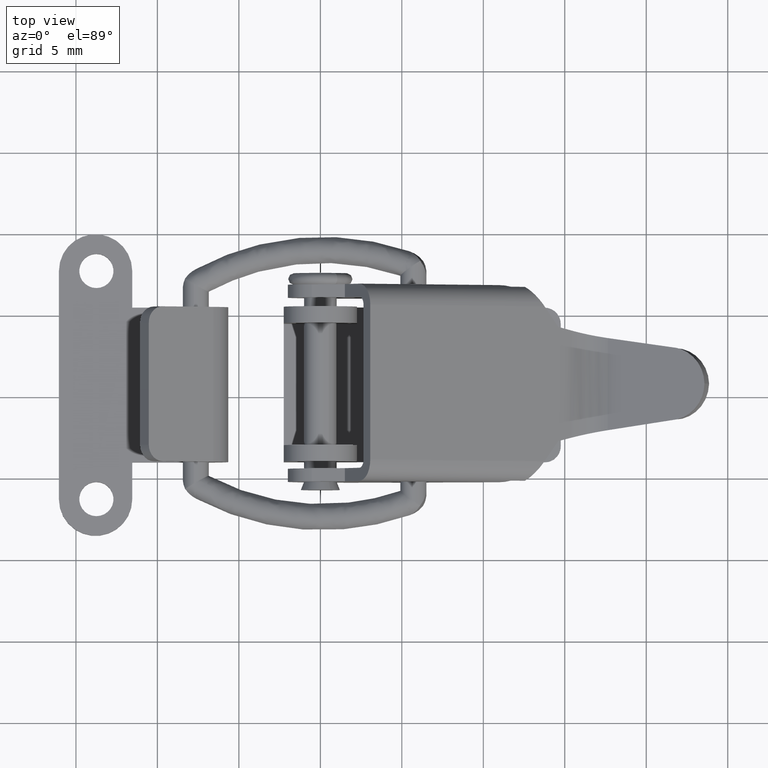
[diagram: clean part render]
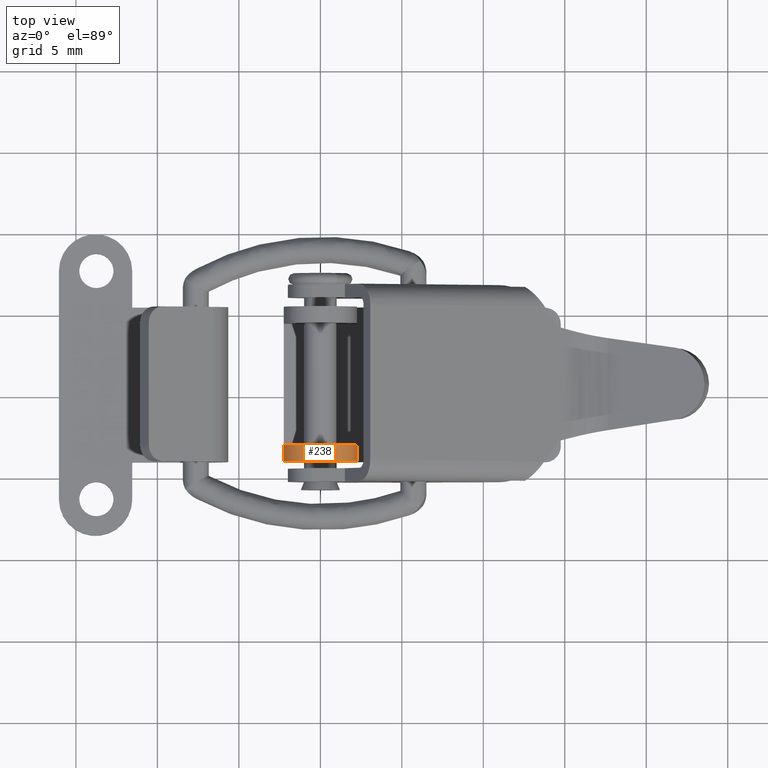
[diagram: same view with one face highlighted and labeled with its STEP entity id]
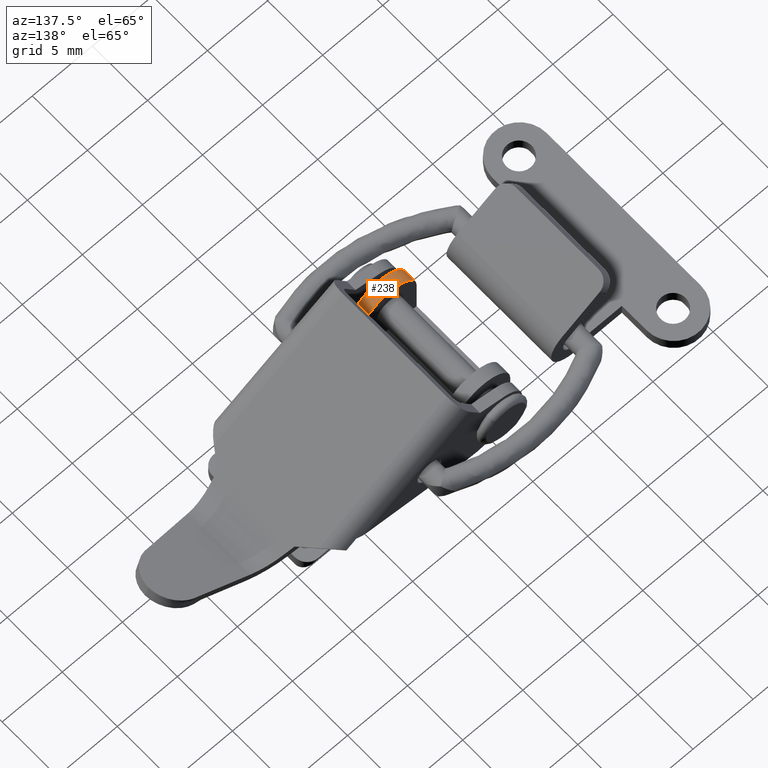
[diagram: same view with one face highlighted and labeled with its STEP entity id]
A machine part, top view. The second image highlights one B-rep face of the part: STEP entity #238.
A second angle (auxiliary view) of the same face is appended — the face is thin or edge-on in the first view.
In plain terms, the highlighted cylindrical surface (partial cylindrical patch) has radius 2.25 mm, axis along (0, 1, 0).
Its self-contained STEP definition (entity closure, byte-faithful):
#238=ADVANCED_FACE('',(#834),#833,.T.);
#833=CYLINDRICAL_SURFACE('',#1791,2.25000000000E+00);
#834=FACE_OUTER_BOUND('',#1792,.T.);
#1788=CARTESIAN_POINT('',(2.25000000000E+00,-4.05000000000E+00,9.95250000000E+02));
#1789=DIRECTION('',(0.00000000000E+00,-0.00000000000E+00,1.00000000000E+00));
#1790=DIRECTION('',(1.00000000000E+00,-0.00000000000E+00,-0.00000000000E+00));
#1791=AXIS2_PLACEMENT_3D('',#1788,#1789,#1790);
#1792=EDGE_LOOP('',(#2522,#2523,#2524,#2525));
#2522=ORIENTED_EDGE('',*,*,#2980,.T.);
#2523=ORIENTED_EDGE('',*,*,#2956,.T.);
#2524=ORIENTED_EDGE('',*,*,#2970,.F.);
#2525=ORIENTED_EDGE('',*,*,#3001,.F.);
#2956=EDGE_CURVE('',#3928,#3921,#3929,.T.);
#2970=EDGE_CURVE('',#4016,#3921,#4023,.T.);
#2980=EDGE_CURVE('',#4088,#3928,#4089,.T.);
#3001=EDGE_CURVE('',#4088,#4016,#4229,.T.);
#3921=VERTEX_POINT('',#5778);
#3928=VERTEX_POINT('',#5782);
#3929=LINE('',#5783,#5784);
#4016=VERTEX_POINT('',#5835);
#4023=CIRCLE('',#5842,2.25000000000E+00);
#4088=VERTEX_POINT('',#5878);
#4089=CIRCLE('',#5882,2.25000000000E+00);
#4229=LINE('',#5969,#5970);
#5778=CARTESIAN_POINT('',(1.42108547152E-14,-4.05000000000E+00,-4.75000000000E+00));
#5782=CARTESIAN_POINT('',(1.42108547152E-14,-4.05000000000E+00,-3.75000000000E+00));
#5783=CARTESIAN_POINT('',(1.42108547152E-14,-4.05000000000E+00,-3.75000000000E+00));
#5784=VECTOR('',#5785,1.00000000000E+00);
#5785=DIRECTION('',(0.00000000000E+00,0.00000000000E+00,-1.00000000000E+00));
#5835=CARTESIAN_POINT('',(4.50000000000E+00,-4.05000000000E+00,-4.75000000000E+00));
#5839=CARTESIAN_POINT('',(2.25000000000E+00,-4.05000000000E+00,-4.75000000000E+00));
#5840=DIRECTION('',(0.00000000000E+00,0.00000000000E+00,-1.00000000000E+00));
#5841=DIRECTION('',(-1.00000000000E+00,-0.00000000000E+00,-0.00000000000E+00));
#5842=AXIS2_PLACEMENT_3D('',#5839,#5840,#5841);
#5878=CARTESIAN_POINT('',(4.50000000000E+00,-4.05000000000E+00,-3.75000000000E+00));
#5879=CARTESIAN_POINT('',(2.25000000000E+00,-4.05000000000E+00,-3.75000000000E+00));
#5880=DIRECTION('',(0.00000000000E+00,0.00000000000E+00,-1.00000000000E+00));
#5881=DIRECTION('',(-1.00000000000E+00,-0.00000000000E+00,-0.00000000000E+00));
#5882=AXIS2_PLACEMENT_3D('',#5879,#5880,#5881);
#5969=CARTESIAN_POINT('',(4.50000000000E+00,-4.05000000000E+00,-3.75000000000E+00));
#5970=VECTOR('',#5971,1.00000000000E+00);
#5971=DIRECTION('',(0.00000000000E+00,0.00000000000E+00,-1.00000000000E+00));